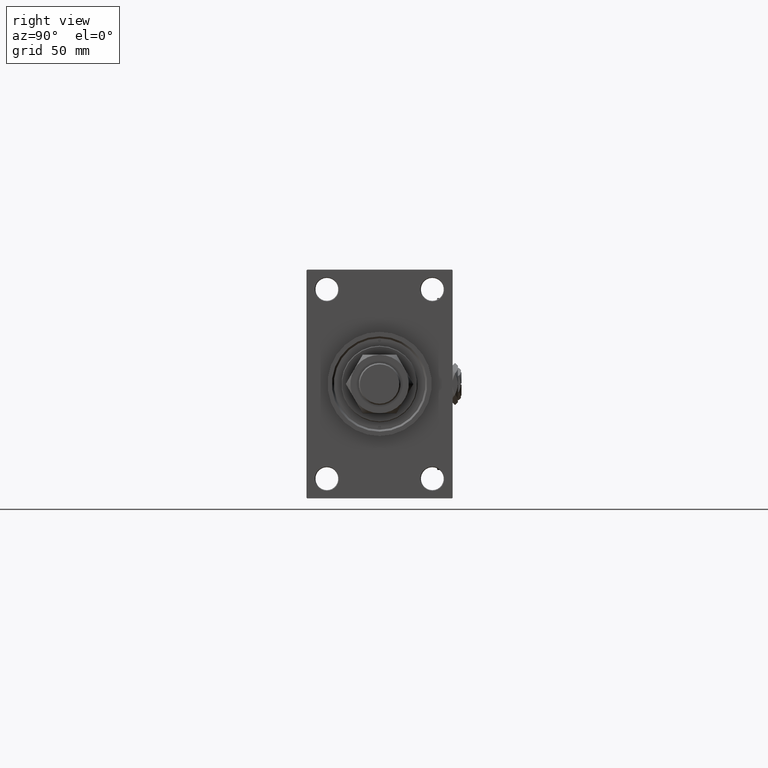
[diagram: clean part render]
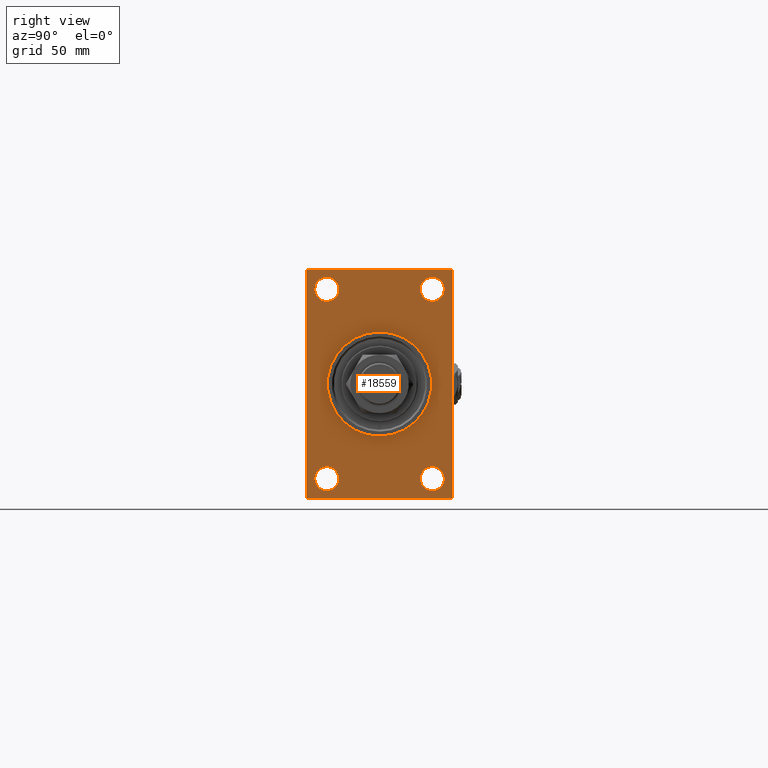
[diagram: same view with one face highlighted and labeled with its STEP entity id]
A machine part, right view. The second image highlights one B-rep face of the part: STEP entity #18559.
In plain terms, the highlighted planar face has unit normal (-1, 0, 0).
Its self-contained STEP definition (entity closure, byte-faithful):
#1617 = DIRECTION ( 'NONE',  ( -1.000000000000000000, 0.000000000000000000, -0.000000000000000000 ) ) ;
#2683 = CARTESIAN_POINT ( 'NONE',  ( 388.9999999999999432, 41.50000000000000711, 84.00000000000001421 ) ) ;
#3614 = CIRCLE ( 'NONE', #5373, 9.500000000000008882 ) ;
#3650 = ORIENTED_EDGE ( 'NONE', *, *, #39731, .T. ) ;
#3763 = ORIENTED_EDGE ( 'NONE', *, *, #31834, .T. ) ;
#4072 = VERTEX_POINT ( 'NONE', #14586 ) ;
#5041 = EDGE_CURVE ( 'NONE', #4072, #19759, #28196, .T. ) ;
#5281 = CARTESIAN_POINT ( 'NONE',  ( 388.9999999999999432, -57.00000000000002132, -90.00000000000001421 ) ) ;
#5373 = AXIS2_PLACEMENT_3D ( 'NONE', #8560, #46400, #29802 ) ;
#5434 = PLANE ( 'NONE',  #51682 ) ;
#5532 = DIRECTION ( 'NONE',  ( -1.000000000000000000, 0.000000000000000000, -0.000000000000000000 ) ) ;
#5549 = ORIENTED_EDGE ( 'NONE', *, *, #46866, .T. ) ;
#5748 = LINE ( 'NONE', #22916, #34312 ) ;
#6190 = ORIENTED_EDGE ( 'NONE', *, *, #50020, .T. ) ;
#6583 = CARTESIAN_POINT ( 'NONE',  ( 388.9999999999999432, 57.49999999999997868, -90.00000000000000000 ) ) ;
#7432 = AXIS2_PLACEMENT_3D ( 'NONE', #43290, #31839, #9801 ) ;
#7848 = VERTEX_POINT ( 'NONE', #18989 ) ;
#7876 = CARTESIAN_POINT ( 'NONE',  ( 388.9999999999999432, 57.49999999999997158, 89.99999999999998579 ) ) ;
#8299 = VERTEX_POINT ( 'NONE', #24615 ) ;
#8352 = VECTOR ( 'NONE', #49050, 1000.000000000000000 ) ;
#8560 = CARTESIAN_POINT ( 'NONE',  ( 388.9999999999999432, 41.50000000000000711, 74.50000000000001421 ) ) ;
#8771 = DIRECTION ( 'NONE',  ( 0.000000000000000000, 0.000000000000000000, 1.000000000000000000 ) ) ;
#8988 = FACE_OUTER_BOUND ( 'NONE', #24732, .T. ) ;
#9514 = FACE_BOUND ( 'NONE', #32348, .T. ) ;
#9801 = DIRECTION ( 'NONE',  ( 0.000000000000000000, 0.000000000000000000, -1.000000000000000000 ) ) ;
#10423 = ORIENTED_EDGE ( 'NONE', *, *, #29884, .F. ) ;
#10610 = CARTESIAN_POINT ( 'NONE',  ( 388.9999999999999432, 56.99999999999997158, 89.99999999999998579 ) ) ;
#11244 = ORIENTED_EDGE ( 'NONE', *, *, #44330, .F. ) ;
#11828 = CARTESIAN_POINT ( 'NONE',  ( 388.9999999999999432, 41.50000000000000711, 74.50000000000001421 ) ) ;
#12004 = VECTOR ( 'NONE', #15755, 1000.000000000000000 ) ;
#12250 = ORIENTED_EDGE ( 'NONE', *, *, #45773, .T. ) ;
#12282 = AXIS2_PLACEMENT_3D ( 'NONE', #40359, #36005, #36278 ) ;
#12545 = VERTEX_POINT ( 'NONE', #13383 ) ;
#12593 = CIRCLE ( 'NONE', #44736, 9.500000000000008882 ) ;
#12629 = CIRCLE ( 'NONE', #7432, 41.00000000000000000 ) ;
#12978 = CARTESIAN_POINT ( 'NONE',  ( 388.9999999999999432, -57.50000000000002132, -89.50000000000002842 ) ) ;
#13336 = VERTEX_POINT ( 'NONE', #32985 ) ;
#13383 = CARTESIAN_POINT ( 'NONE',  ( 388.9999999999999432, 41.50000000000000711, 65.00000000000000000 ) ) ;
#13578 = ORIENTED_EDGE ( 'NONE', *, *, #29018, .T. ) ;
#14472 = CIRCLE ( 'NONE', #44881, 9.500000000000008882 ) ;
#14586 = CARTESIAN_POINT ( 'NONE',  ( 388.9999999999999432, -57.00000000000007105, 89.99999999999997158 ) ) ;
#14639 = CARTESIAN_POINT ( 'NONE',  ( 388.9999999999999432, 56.99999999999997158, 89.99999999999998579 ) ) ;
#15223 = EDGE_CURVE ( 'NONE', #21399, #19711, #43834, .T. ) ;
#15700 = LINE ( 'NONE', #14639, #35265 ) ;
#15755 = DIRECTION ( 'NONE',  ( -0.000000000000000000, 0.7071067811865573427, 0.7071067811865378028 ) ) ;
#15944 = CARTESIAN_POINT ( 'NONE',  ( 388.9999999999999432, -57.00000000000002132, -90.00000000000001421 ) ) ;
#16024 = AXIS2_PLACEMENT_3D ( 'NONE', #46341, #50993, #8771 ) ;
#16902 = EDGE_CURVE ( 'NONE', #19711, #21399, #12593, .T. ) ;
#17498 = VERTEX_POINT ( 'NONE', #2683 ) ;
#17543 = CARTESIAN_POINT ( 'NONE',  ( 388.9999999999999432, -41.49999999999999289, -64.99999999999997158 ) ) ;
#17553 = DIRECTION ( 'NONE',  ( 0.000000000000000000, 0.000000000000000000, 1.000000000000000000 ) ) ;
#18559 = ADVANCED_FACE ( 'NONE', ( #30483, #9514, #22087, #38917, #38384, #8988 ), #5434, .F. ) ;
#18989 = CARTESIAN_POINT ( 'NONE',  ( 388.9999999999999432, -41.49999999999999289, 65.00000000000000000 ) ) ;
#19122 = CARTESIAN_POINT ( 'NONE',  ( 388.9999999999999432, -41.49999999999999289, 84.00000000000001421 ) ) ;
#19497 = DIRECTION ( 'NONE',  ( -0.000000000000000000, -0.7071067811865524577, -0.7071067811865426878 ) ) ;
#19711 = VERTEX_POINT ( 'NONE', #33986 ) ;
#19759 = VERTEX_POINT ( 'NONE', #48913 ) ;
#19929 = CARTESIAN_POINT ( 'NONE',  ( 388.9999999999999432, 57.49999999999997158, 89.99999999999998579 ) ) ;
#20378 = DIRECTION ( 'NONE',  ( 0.000000000000000000, 0.000000000000000000, 1.000000000000000000 ) ) ;
#20770 = EDGE_CURVE ( 'NONE', #8299, #36273, #15700, .T. ) ;
#21399 = VERTEX_POINT ( 'NONE', #32757 ) ;
#21956 = DIRECTION ( 'NONE',  ( -1.000000000000000000, 0.000000000000000000, -0.000000000000000000 ) ) ;
#22087 = FACE_BOUND ( 'NONE', #53805, .T. ) ;
#22392 = AXIS2_PLACEMENT_3D ( 'NONE', #34983, #21956, #38789 ) ;
#22916 = CARTESIAN_POINT ( 'NONE',  ( 388.9999999999999432, -57.50000000000002132, 89.99999999999997158 ) ) ;
#23221 = DIRECTION ( 'NONE',  ( 0.000000000000000000, -1.000000000000000000, -1.206764157201257045E-16 ) ) ;
#23676 = LINE ( 'NONE', #24212, #12004 ) ;
#24212 = CARTESIAN_POINT ( 'NONE',  ( 388.9999999999999432, 57.49999999999997868, -89.50000000000001421 ) ) ;
#24250 = EDGE_LOOP ( 'NONE', ( #41279, #11244 ) ) ;
#24438 = VECTOR ( 'NONE', #41090, 1000.000000000000000 ) ;
#24477 = VECTOR ( 'NONE', #23221, 1000.000000000000000 ) ;
#24615 = CARTESIAN_POINT ( 'NONE',  ( 388.9999999999999432, 57.49999999999997158, 89.49999999999998579 ) ) ;
#24652 = CARTESIAN_POINT ( 'NONE',  ( 388.9999999999999432, -57.50000000000002132, 89.50000000000002842 ) ) ;
#24732 = EDGE_LOOP ( 'NONE', ( #39811, #3650, #10423, #6190, #48484, #36391, #13578, #40639 ) ) ;
#25078 = ORIENTED_EDGE ( 'NONE', *, *, #48324, .T. ) ;
#25762 = EDGE_CURVE ( 'NONE', #30884, #36402, #35453, .T. ) ;
#27988 = EDGE_LOOP ( 'NONE', ( #3763, #25078 ) ) ;
#28196 = LINE ( 'NONE', #24652, #28759 ) ;
#28759 = VECTOR ( 'NONE', #19497, 1000.000000000000000 ) ;
#28760 = CIRCLE ( 'NONE', #53118, 9.500000000000008882 ) ;
#28909 = VERTEX_POINT ( 'NONE', #43318 ) ;
#29018 = EDGE_CURVE ( 'NONE', #36273, #4072, #32129, .T. ) ;
#29306 = CIRCLE ( 'NONE', #22392, 9.500000000000008882 ) ;
#29802 = DIRECTION ( 'NONE',  ( 0.000000000000000000, 0.000000000000000000, 1.000000000000000000 ) ) ;
#29884 = EDGE_CURVE ( 'NONE', #52748, #34706, #43879, .T. ) ;
#30483 = FACE_BOUND ( 'NONE', #27988, .T. ) ;
#30884 = VERTEX_POINT ( 'NONE', #17543 ) ;
#30935 = EDGE_LOOP ( 'NONE', ( #12250, #39511 ) ) ;
#30963 = DIRECTION ( 'NONE',  ( -1.000000000000000000, 0.000000000000000000, -0.000000000000000000 ) ) ;
#31791 = CIRCLE ( 'NONE', #43980, 9.500000000000008882 ) ;
#31834 = EDGE_CURVE ( 'NONE', #7848, #49537, #28760, .T. ) ;
#31839 = DIRECTION ( 'NONE',  ( 1.000000000000000000, 0.000000000000000000, 0.000000000000000000 ) ) ;
#32129 = LINE ( 'NONE', #7876, #24438 ) ;
#32160 = LINE ( 'NONE', #19929, #8352 ) ;
#32248 = VERTEX_POINT ( 'NONE', #12978 ) ;
#32348 = EDGE_LOOP ( 'NONE', ( #5549, #49629 ) ) ;
#32757 = CARTESIAN_POINT ( 'NONE',  ( 388.9999999999999432, 41.50000000000000711, -64.99999999999998579 ) ) ;
#32795 = EDGE_CURVE ( 'NONE', #49084, #28909, #33156, .T. ) ;
#32985 = CARTESIAN_POINT ( 'NONE',  ( 388.9999999999999432, 57.49999999999997868, -89.49999999999995737 ) ) ;
#33156 = CIRCLE ( 'NONE', #12282, 41.00000000000000000 ) ;
#33502 = EDGE_CURVE ( 'NONE', #17498, #12545, #3614, .T. ) ;
#33650 = CARTESIAN_POINT ( 'NONE',  ( 388.9999999999999432, 0.000000000000000000, 41.00000000000000000 ) ) ;
#33986 = CARTESIAN_POINT ( 'NONE',  ( 388.9999999999999432, 41.50000000000000711, -84.00000000000000000 ) ) ;
#34312 = VECTOR ( 'NONE', #34632, 1000.000000000000000 ) ;
#34442 = DIRECTION ( 'NONE',  ( 0.000000000000000000, 0.7071067811865965336, -0.7071067811864985009 ) ) ;
#34609 = AXIS2_PLACEMENT_3D ( 'NONE', #39903, #30963, #52191 ) ;
#34632 = DIRECTION ( 'NONE',  ( 0.000000000000000000, 0.000000000000000000, -1.000000000000000000 ) ) ;
#34706 = VERTEX_POINT ( 'NONE', #15944 ) ;
#34983 = CARTESIAN_POINT ( 'NONE',  ( 388.9999999999999432, -41.49999999999999289, 74.50000000000001421 ) ) ;
#35265 = VECTOR ( 'NONE', #47844, 1000.000000000000114 ) ;
#35453 = CIRCLE ( 'NONE', #34609, 9.500000000000008882 ) ;
#36005 = DIRECTION ( 'NONE',  ( 1.000000000000000000, 0.000000000000000000, 0.000000000000000000 ) ) ;
#36065 = DIRECTION ( 'NONE',  ( 0.000000000000000000, 0.000000000000000000, 1.000000000000000000 ) ) ;
#36273 = VERTEX_POINT ( 'NONE', #10610 ) ;
#36278 = DIRECTION ( 'NONE',  ( 0.000000000000000000, 0.000000000000000000, -1.000000000000000000 ) ) ;
#36391 = ORIENTED_EDGE ( 'NONE', *, *, #20770, .T. ) ;
#36402 = VERTEX_POINT ( 'NONE', #40545 ) ;
#38185 = CARTESIAN_POINT ( 'NONE',  ( 388.9999999999999432, 41.50000000000000711, -74.50000000000000000 ) ) ;
#38384 = FACE_BOUND ( 'NONE', #24250, .T. ) ;
#38754 = CARTESIAN_POINT ( 'NONE',  ( 388.9999999999999432, -41.49999999999999289, 74.50000000000001421 ) ) ;
#38789 = DIRECTION ( 'NONE',  ( 0.000000000000000000, 0.000000000000000000, 1.000000000000000000 ) ) ;
#38917 = FACE_BOUND ( 'NONE', #30935, .T. ) ;
#38951 = EDGE_CURVE ( 'NONE', #19759, #32248, #5748, .T. ) ;
#39511 = ORIENTED_EDGE ( 'NONE', *, *, #33502, .T. ) ;
#39731 = EDGE_CURVE ( 'NONE', #32248, #34706, #50504, .T. ) ;
#39811 = ORIENTED_EDGE ( 'NONE', *, *, #38951, .T. ) ;
#39903 = CARTESIAN_POINT ( 'NONE',  ( 388.9999999999999432, -41.49999999999999289, -74.49999999999998579 ) ) ;
#40359 = CARTESIAN_POINT ( 'NONE',  ( 388.9999999999999432, 0.000000000000000000, 0.000000000000000000 ) ) ;
#40545 = CARTESIAN_POINT ( 'NONE',  ( 388.9999999999999432, -41.49999999999999289, -83.99999999999998579 ) ) ;
#40639 = ORIENTED_EDGE ( 'NONE', *, *, #5041, .T. ) ;
#41090 = DIRECTION ( 'NONE',  ( 0.000000000000000000, -1.000000000000000000, -1.206764157201257291E-16 ) ) ;
#41279 = ORIENTED_EDGE ( 'NONE', *, *, #32795, .F. ) ;
#41843 = DIRECTION ( 'NONE',  ( -1.000000000000000000, 0.000000000000000000, -0.000000000000000000 ) ) ;
#43290 = CARTESIAN_POINT ( 'NONE',  ( 388.9999999999999432, 0.000000000000000000, 0.000000000000000000 ) ) ;
#43318 = CARTESIAN_POINT ( 'NONE',  ( 388.9999999999999432, 5.021051876504148963E-15, -41.00000000000000000 ) ) ;
#43586 = ORIENTED_EDGE ( 'NONE', *, *, #16902, .T. ) ;
#43834 = CIRCLE ( 'NONE', #16024, 9.500000000000008882 ) ;
#43879 = LINE ( 'NONE', #6583, #24477 ) ;
#43980 = AXIS2_PLACEMENT_3D ( 'NONE', #11828, #52959, #36065 ) ;
#44330 = EDGE_CURVE ( 'NONE', #28909, #49084, #12629, .T. ) ;
#44736 = AXIS2_PLACEMENT_3D ( 'NONE', #38185, #50738, #50459 ) ;
#44881 = AXIS2_PLACEMENT_3D ( 'NONE', #49226, #41843, #20378 ) ;
#45773 = EDGE_CURVE ( 'NONE', #12545, #17498, #31791, .T. ) ;
#46151 = EDGE_CURVE ( 'NONE', #8299, #13336, #32160, .T. ) ;
#46341 = CARTESIAN_POINT ( 'NONE',  ( 388.9999999999999432, 41.50000000000000711, -74.50000000000000000 ) ) ;
#46400 = DIRECTION ( 'NONE',  ( -1.000000000000000000, 0.000000000000000000, -0.000000000000000000 ) ) ;
#46498 = VECTOR ( 'NONE', #34442, 1000.000000000000114 ) ;
#46561 = DIRECTION ( 'NONE',  ( -0.000000000000000000, 0.000000000000000000, 1.000000000000000000 ) ) ;
#46866 = EDGE_CURVE ( 'NONE', #36402, #30884, #14472, .T. ) ;
#46928 = ORIENTED_EDGE ( 'NONE', *, *, #15223, .T. ) ;
#47844 = DIRECTION ( 'NONE',  ( 0.000000000000000000, -0.7071067811865474617, 0.7071067811865474617 ) ) ;
#48324 = EDGE_CURVE ( 'NONE', #49537, #7848, #29306, .T. ) ;
#48484 = ORIENTED_EDGE ( 'NONE', *, *, #46151, .F. ) ;
#48913 = CARTESIAN_POINT ( 'NONE',  ( 388.9999999999999432, -57.50000000000002132, 89.50000000000002842 ) ) ;
#49050 = DIRECTION ( 'NONE',  ( 0.000000000000000000, 3.854941057726238467E-17, -1.000000000000000000 ) ) ;
#49084 = VERTEX_POINT ( 'NONE', #33650 ) ;
#49226 = CARTESIAN_POINT ( 'NONE',  ( 388.9999999999999432, -41.49999999999999289, -74.49999999999998579 ) ) ;
#49537 = VERTEX_POINT ( 'NONE', #19122 ) ;
#49629 = ORIENTED_EDGE ( 'NONE', *, *, #25762, .T. ) ;
#50020 = EDGE_CURVE ( 'NONE', #52748, #13336, #23676, .T. ) ;
#50459 = DIRECTION ( 'NONE',  ( 0.000000000000000000, 0.000000000000000000, 1.000000000000000000 ) ) ;
#50504 = LINE ( 'NONE', #5281, #46498 ) ;
#50660 = CARTESIAN_POINT ( 'NONE',  ( 388.9999999999999432, 0.000000000000000000, 0.000000000000000000 ) ) ;
#50738 = DIRECTION ( 'NONE',  ( -1.000000000000000000, 0.000000000000000000, -0.000000000000000000 ) ) ;
#50993 = DIRECTION ( 'NONE',  ( -1.000000000000000000, 0.000000000000000000, -0.000000000000000000 ) ) ;
#51121 = CARTESIAN_POINT ( 'NONE',  ( 388.9999999999999432, 56.99999999999997868, -90.00000000000000000 ) ) ;
#51682 = AXIS2_PLACEMENT_3D ( 'NONE', #50660, #1617, #46561 ) ;
#52191 = DIRECTION ( 'NONE',  ( 0.000000000000000000, 0.000000000000000000, 1.000000000000000000 ) ) ;
#52748 = VERTEX_POINT ( 'NONE', #51121 ) ;
#52959 = DIRECTION ( 'NONE',  ( -1.000000000000000000, 0.000000000000000000, -0.000000000000000000 ) ) ;
#53118 = AXIS2_PLACEMENT_3D ( 'NONE', #38754, #5532, #17553 ) ;
#53805 = EDGE_LOOP ( 'NONE', ( #43586, #46928 ) ) ;